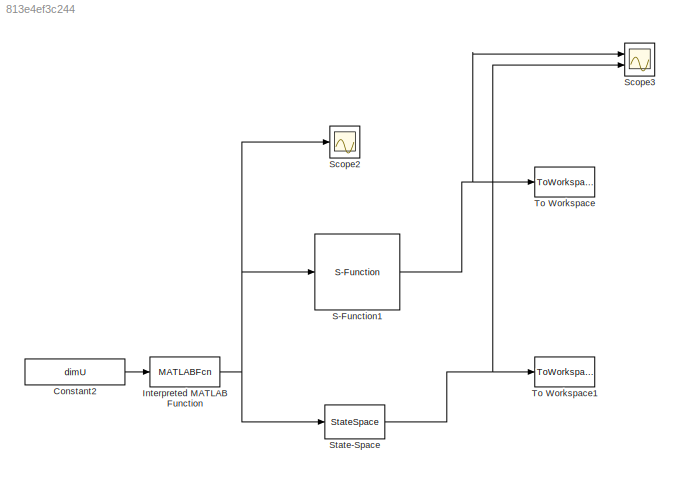
MODEL slx_813e4ef3c244
KIND model
CONFIG InitFcn = dimX = 40;\ndimU = 42;\ndimY = 42;\n\nn = dimX; % choose the size\nd = diag(-rand(1,n)); % create the eigenvalues\nv = randn(n,n); % create the eigenvectors\n% be sure they are normalized (but they don't have to be)\nfor ind = 1:n\n    v(:,n) = v(:,n)/mean(v(:,n));\nend\n% Construct x, the matrix with negative eigenvalues\nmatA = v*d*v'; % has negative eigenvalues\n\n% matA = rand(dimX,dimX);\n    matB = rand(di...<+173ch>
CONFIG StopFcn = disp('');\nlen = size(original.Data);\nvalid = 1;\n\nbiggestError = 0;\n\nfor k=1:dimY\n    t = original.Data(k,1,:);\n    temp = reshape(t,length(t),1);\n    temp1 = abs( temp - own.Data(:,k)) > 1e-10;\n    tt =  max(abs(temp - own.Data(:,k)));\n    \n    if( tt > biggestError )\n        biggestError = tt;\n    end\nend\n\nif( any( temp1 ) )\n  error('mismatch during comparison')\n  valid = 0;\nend\n\nif( valid == 1 )...<+104ch>
BLOCK [Constant] Constant2
  Value = dimU
  VectorParams1D = off
BLOCK [MATLABFcn] Interpreted MATLAB Function
  MATLABFcn = randn(dimU,1)*0+ones(dimU,1)
  Output1D = off
  Ports = [1, 1]
BLOCK [S-Function] S-Function1
  EnableBusSupport = off
  FunctionName = sfun_stateSpace
  Parameters = matrixA,matrixB,matrixC,matrixD,x0
  Ports = [1, 1]
BLOCK [Scope] Scope2
  DataFormat = StructureWithTime
  Floating = off
  NumInputPorts = 1
  Ports = [1]
  SampleTime = 0
  ShowLegends = off
BLOCK [Scope] Scope3
  DataFormat = StructureWithTime
  Floating = off
  LimitDataPoints = off
  NumInputPorts = 2
  Ports = [2]
  SampleTime = 0
  SaveName = ScopeData2
  ShowLegends = off
  YMax = 5~5
  YMin = -5~-5
BLOCK [StateSpace] State-Space
  A = matA
  B = matB
  C = matC
  D = matD
  Ports = [1, 1]
  X0 = vect_x0
BLOCK [ToWorkspace] To Workspace
  MaxDataPoints = inf
  Ports = [1]
  SampleTime = -1
  SaveFormat = Timeseries
  VariableName = own
BLOCK [ToWorkspace] To Workspace1
  MaxDataPoints = inf
  Ports = [1]
  SampleTime = -1
  SaveFormat = Timeseries
  VariableName = original
LINE Constant2:1 -> Interpreted MATLAB Function:1
NET Interpreted MATLAB Function:1 -> S-Function1:1, Scope2:1, State-Space:1
NET S-Function1:1 -> Scope3:1, To Workspace:1
NET State-Space:1 -> Scope3:2, To Workspace1:1
note: NET lines group one-source signal fan-out (src -> all destinations, sorted); 1:1 wires keep LINE
